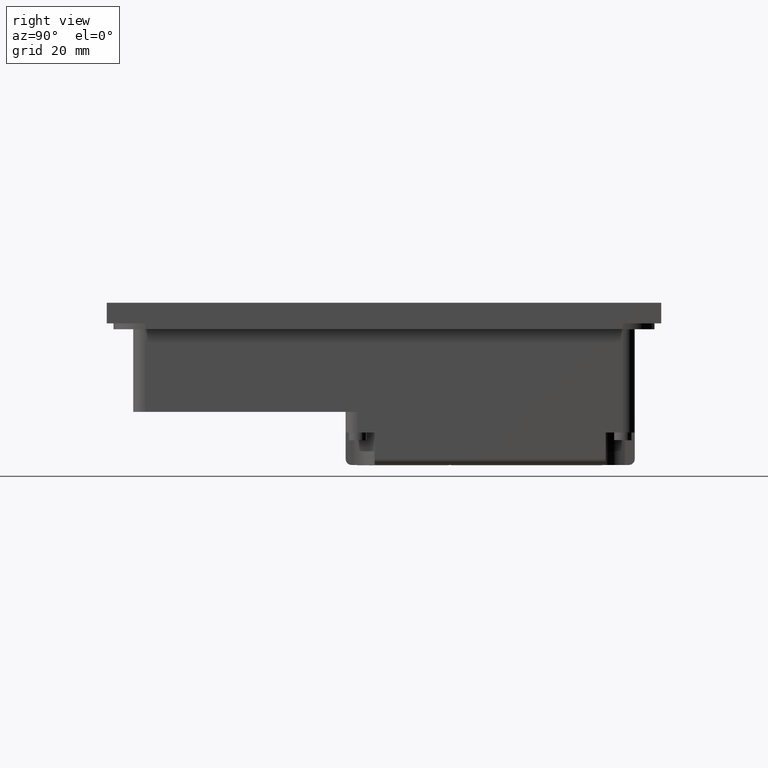
[diagram: clean part render]
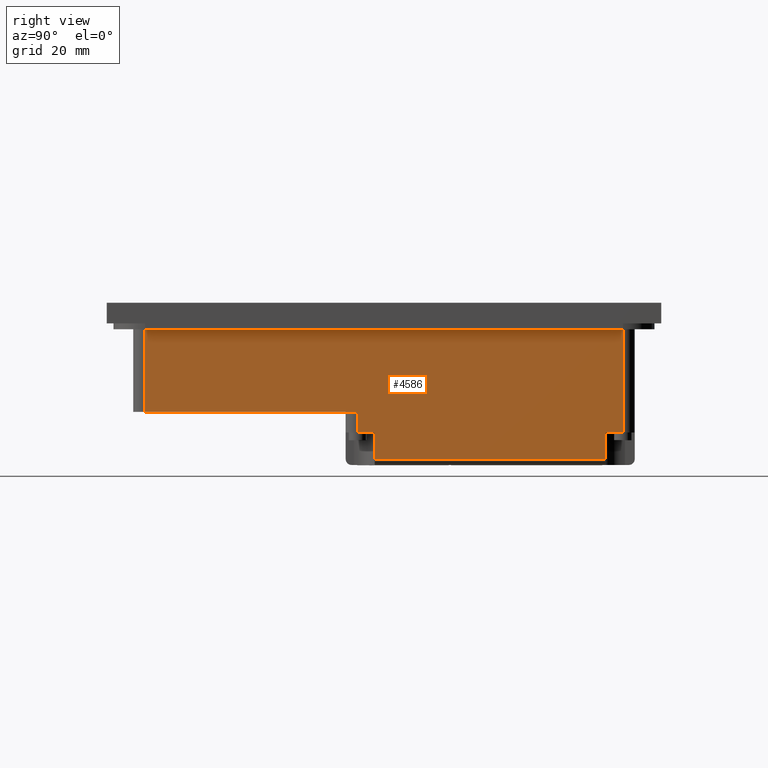
[diagram: same view with one face highlighted and labeled with its STEP entity id]
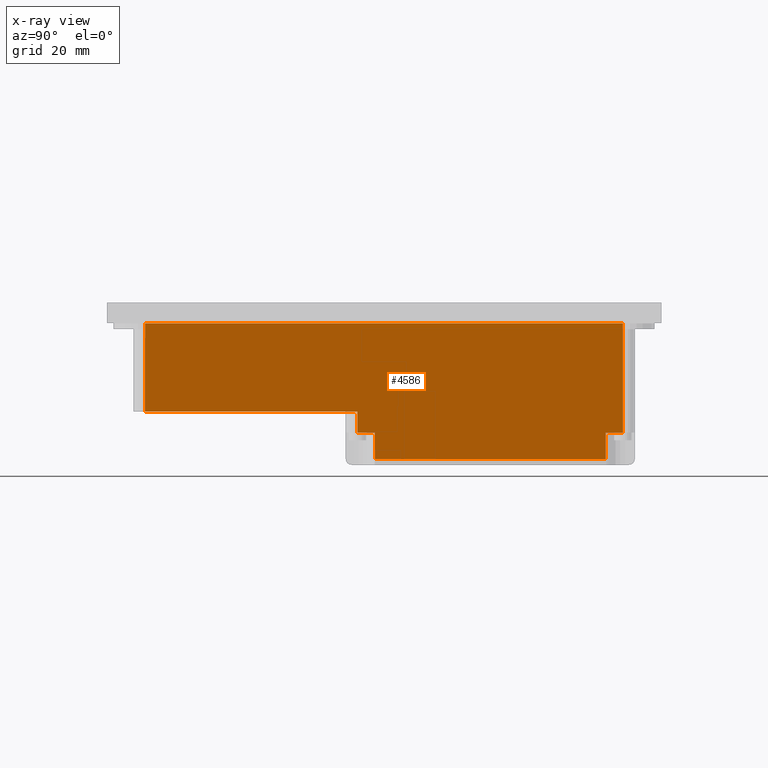
[diagram: x-ray of the same camera — body ghosted, the highlighted face saturated]
A machine part, right view. The second image highlights one B-rep face of the part: STEP entity #4586.
The next image is the same camera in x-ray: the body ghosted, the highlighted face saturated — about 0% of this face is hidden behind the body in this view.
In plain terms, the highlighted planar face has unit normal (1, 0, 0).
Its self-contained STEP definition (entity closure, byte-faithful):
#4586=ADVANCED_FACE('',(#9587),#7277,.T.);
#7277=PLANE('',#50433);
#9587=FACE_OUTER_BOUND('',#12122,.T.);
#12122=EDGE_LOOP('',(#15512,#15513,#15514,#15515,#15516,#15517,#15518,#15519,
#15520,#15521));
#15512=ORIENTED_EDGE('',*,*,#32595,.T.);
#15513=ORIENTED_EDGE('',*,*,#32596,.T.);
#15514=ORIENTED_EDGE('',*,*,#32597,.F.);
#15515=ORIENTED_EDGE('',*,*,#32598,.T.);
#15516=ORIENTED_EDGE('',*,*,#32599,.T.);
#15517=ORIENTED_EDGE('',*,*,#32600,.F.);
#15518=ORIENTED_EDGE('',*,*,#32601,.F.);
#15519=ORIENTED_EDGE('',*,*,#32602,.T.);
#15520=ORIENTED_EDGE('',*,*,#32603,.F.);
#15521=ORIENTED_EDGE('',*,*,#32604,.T.);
#28184=VERTEX_POINT('',#65355);
#28185=VERTEX_POINT('',#65356);
#28186=VERTEX_POINT('',#65358);
#28187=VERTEX_POINT('',#65360);
#28188=VERTEX_POINT('',#65362);
#28189=VERTEX_POINT('',#65364);
#28190=VERTEX_POINT('',#65366);
#28191=VERTEX_POINT('',#65368);
#28192=VERTEX_POINT('',#65370);
#28193=VERTEX_POINT('',#65372);
#32595=EDGE_CURVE('',#28184,#28185,#39017,.T.);
#32596=EDGE_CURVE('',#28185,#28186,#39018,.T.);
#32597=EDGE_CURVE('',#28187,#28186,#39019,.T.);
#32598=EDGE_CURVE('',#28187,#28188,#39020,.T.);
#32599=EDGE_CURVE('',#28188,#28189,#39021,.T.);
#32600=EDGE_CURVE('',#28190,#28189,#39022,.T.);
#32601=EDGE_CURVE('',#28191,#28190,#39023,.T.);
#32602=EDGE_CURVE('',#28191,#28192,#39024,.T.);
#32603=EDGE_CURVE('',#28193,#28192,#39025,.T.);
#32604=EDGE_CURVE('',#28193,#28184,#39026,.T.);
#39017=LINE('',#65354,#44707);
#39018=LINE('',#65357,#44708);
#39019=LINE('',#65359,#44709);
#39020=LINE('',#65361,#44710);
#39021=LINE('',#65363,#44711);
#39022=LINE('',#65365,#44712);
#39023=LINE('',#65367,#44713);
#39024=LINE('',#65369,#44714);
#39025=LINE('',#65371,#44715);
#39026=LINE('',#65373,#44716);
#44707=VECTOR('',#53695,1.);
#44708=VECTOR('',#53696,1.);
#44709=VECTOR('',#53697,1.);
#44710=VECTOR('',#53698,1.);
#44711=VECTOR('',#53699,1.);
#44712=VECTOR('',#53700,1.);
#44713=VECTOR('',#53701,1.);
#44714=VECTOR('',#53702,1.);
#44715=VECTOR('',#53703,1.);
#44716=VECTOR('',#53704,1.);
#50433=AXIS2_PLACEMENT_3D('',#65374,#53705,#53706);
#53695=DIRECTION('',(0.,0.,-1.));
#53696=DIRECTION('',(0.,-1.,0.));
#53697=DIRECTION('',(0.,0.,-1.));
#53698=DIRECTION('',(0.,-1.,0.));
#53699=DIRECTION('',(0.,0.,1.));
#53700=DIRECTION('',(0.,-1.,0.));
#53701=DIRECTION('',(0.,0.,1.));
#53702=DIRECTION('',(0.,-1.,0.));
#53703=DIRECTION('',(0.,0.,1.));
#53704=DIRECTION('',(0.,-1.,0.));
#53705=DIRECTION('',(-1.,0.,0.));
#53706=DIRECTION('',(0.,0.,1.));
#65354=CARTESIAN_POINT('',(-67.,39.7896379981821,-43.));
#65355=CARTESIAN_POINT('',(-67.,39.7896379981821,-43.));
#65356=CARTESIAN_POINT('',(-67.,39.7896379981821,-52.));
#65357=CARTESIAN_POINT('',(-67.,117.65,-52.));
#65358=CARTESIAN_POINT('',(-67.,-38.4896379987125,-52.));
#65359=CARTESIAN_POINT('',(-67.,-38.4896379987125,-43.));
#65360=CARTESIAN_POINT('',(-67.,-38.4896379987125,-43.));
#65361=CARTESIAN_POINT('',(-67.,-38.4896379987125,-43.));
#65362=CARTESIAN_POINT('',(-67.,-44.35,-43.));
#65363=CARTESIAN_POINT('',(-67.,-44.35,-36.));
#65364=CARTESIAN_POINT('',(-67.,-44.35,-6.));
#65365=CARTESIAN_POINT('',(-67.,117.65,-6.));
#65366=CARTESIAN_POINT('',(-67.,117.65,-6.));
#65367=CARTESIAN_POINT('',(-67.,117.65,-36.));
#65368=CARTESIAN_POINT('',(-67.,117.65,-36.));
#65369=CARTESIAN_POINT('',(-67.,117.65,-36.));
#65370=CARTESIAN_POINT('',(-67.,45.65,-36.));
#65371=CARTESIAN_POINT('',(-67.,45.65,-54.));
#65372=CARTESIAN_POINT('',(-67.,45.65,-43.));
#65373=CARTESIAN_POINT('',(-67.,45.65,-43.));
#65374=CARTESIAN_POINT('',(-67.,117.65,-36.));